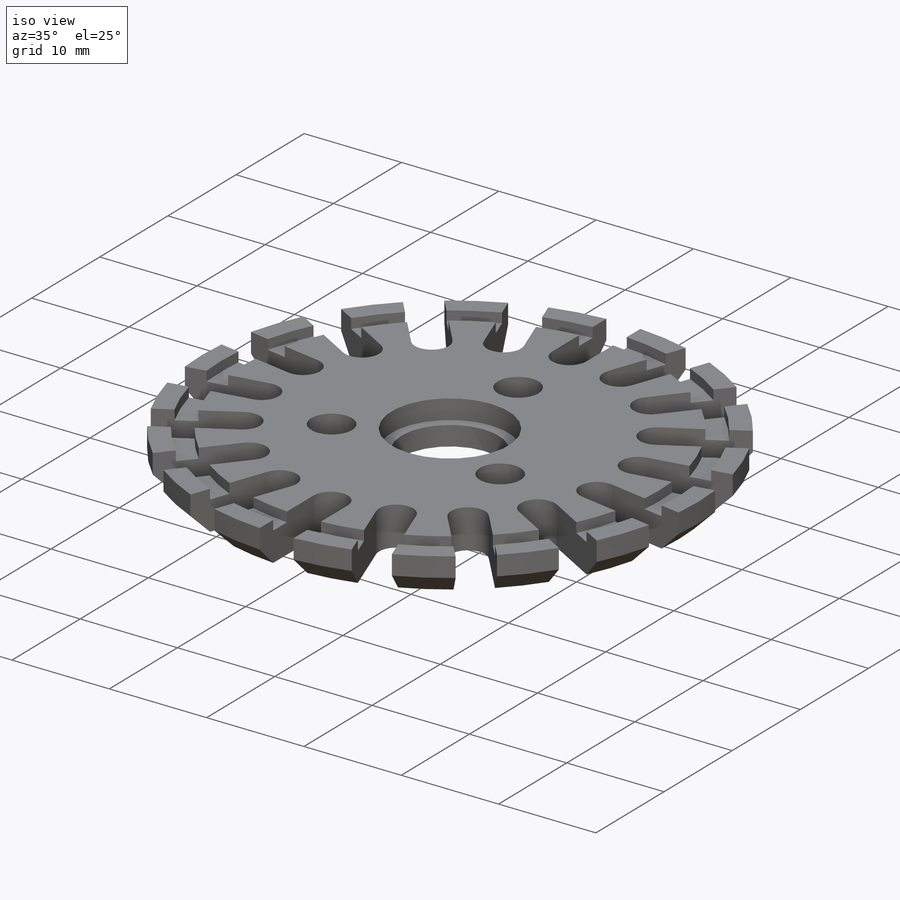
[diagram: iso view]
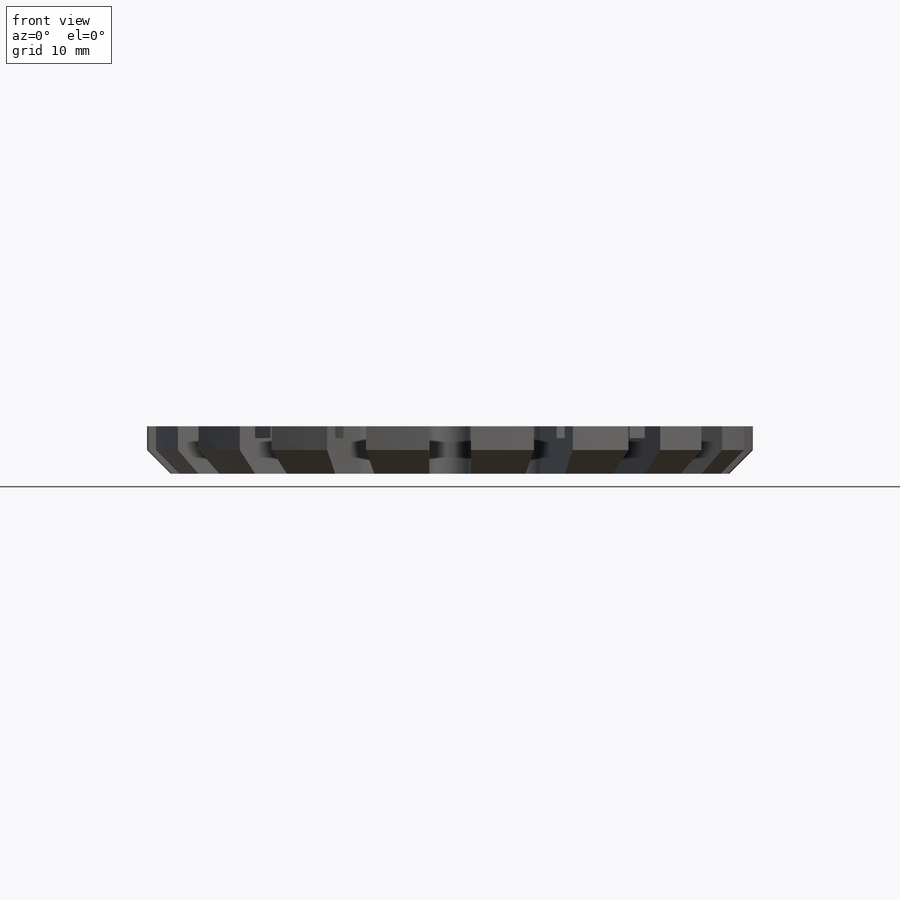
[diagram: front view]
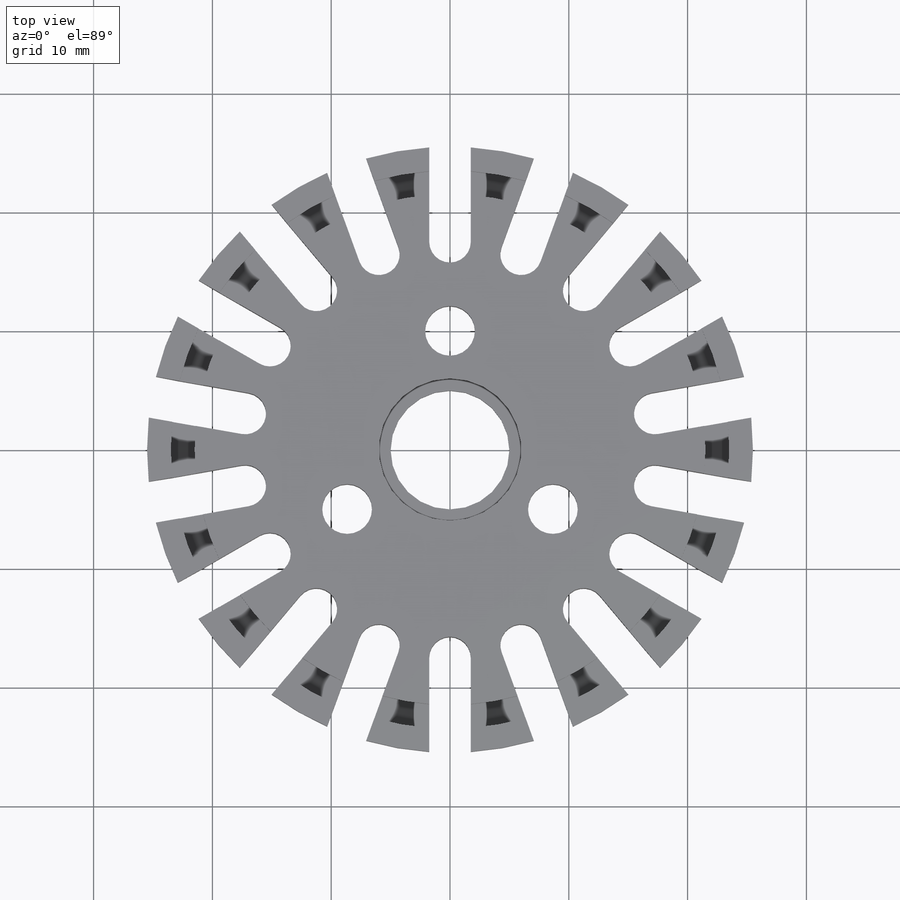
[diagram: top view]
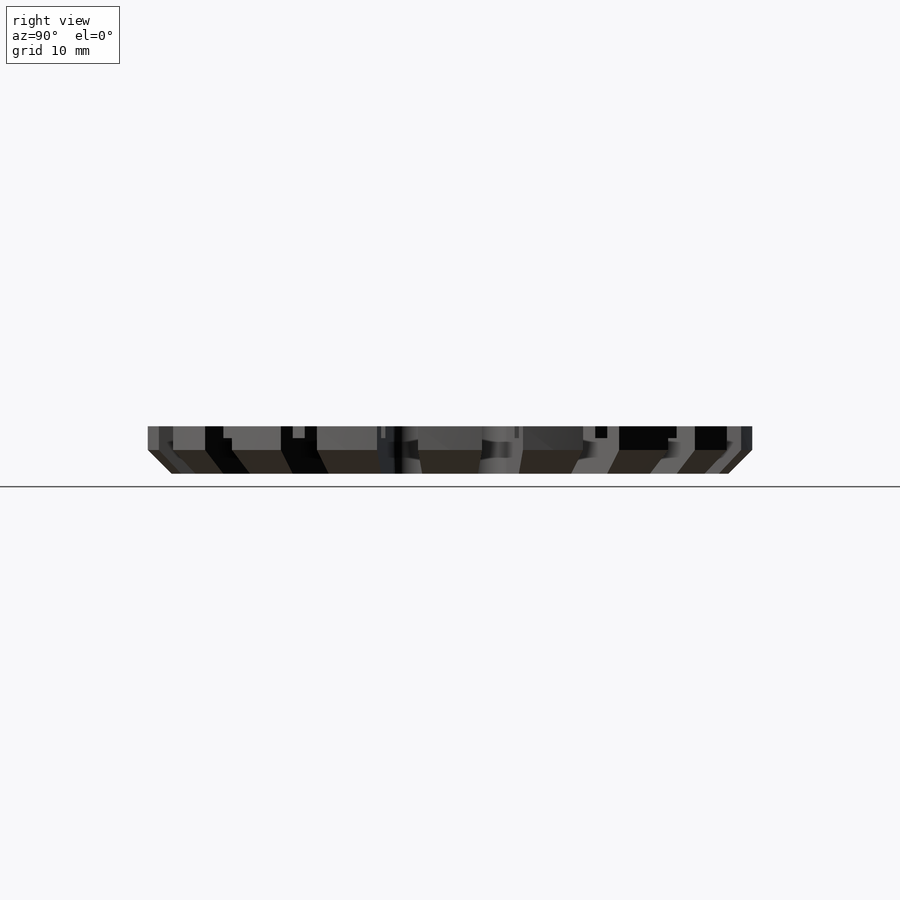
[diagram: right view]
SOLIDWORKS PART (.sldprt)
format: sldprt  version: not decoded by parser v0  size: 497,152 bytes
history: native  units: mm
features: sketch x5, cut_extrude x4, plane x3, material x1, extrude x1, chamfer x1 (+9 scaffold rows collapsed)
feature tree (24):
  scaffold x9  (default folders/planes/origin — collapsed)
  material  "Liga 1060"
  plane  "Plano frontal"
  plane  "Plano superior"
  plane  "Plano direito"
  sketch  "Esboço1"  dims[c1.D1=51.0mm c1.D2=10.0mm c1.D3=35.0mm c1.D4=3.5mm c1.D7=3.5mm c1.D5=~7.93988mm c1.D6=~9.567214mm c1.D8=~16.444621mm c2.D6=20.0deg c2.D8=20.0deg]
  extrude  "Ressalto-extrusão1"  Depth=4mm
  sketch  "Esboço2"  dims[D1=12.0mm]
  cut_extrude  "Corte-extrusão1"  Depth=2mm
  sketch  "Esboço3"  dims[D1=47.0mm D2=43.0mm]
  cut_extrude  "Corte-extrusão2"  Depth=1mm
  chamfer  "Chanfro1"  Distance=2mm Angle=45deg
  sketch  "Esboço4"  dims[D1=20.0mm D2=4.19mm D4=10.0mm D5=10.0mm D6=20.0mm D3=3.0]
  cut_extrude  "Corte-extrusão3"  [1 undecoded]
  sketch  "Esboço5"  dims[D1=2.77mm]
  cut_extrude  "Corte-extrusão4"  Depth=0.42mm
decode coverage: 10 of 11 modeling features carry decoded parameters
note: ~ marks probable driven/reference dimensions
note: 1 parameter value undecoded
note: suppression state not decoded; provenance and decode notes live in map.json
